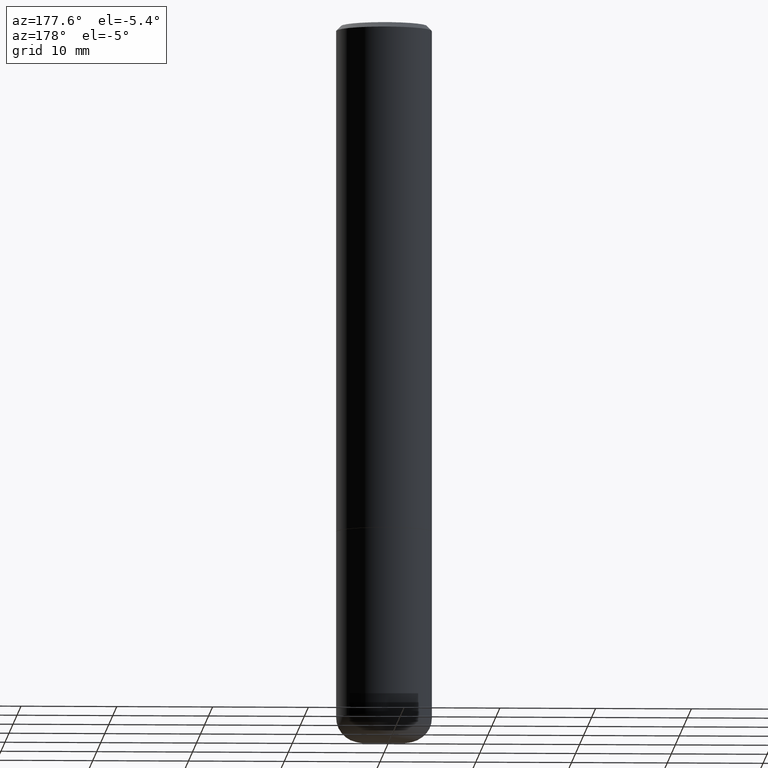
[diagram: clean part render]
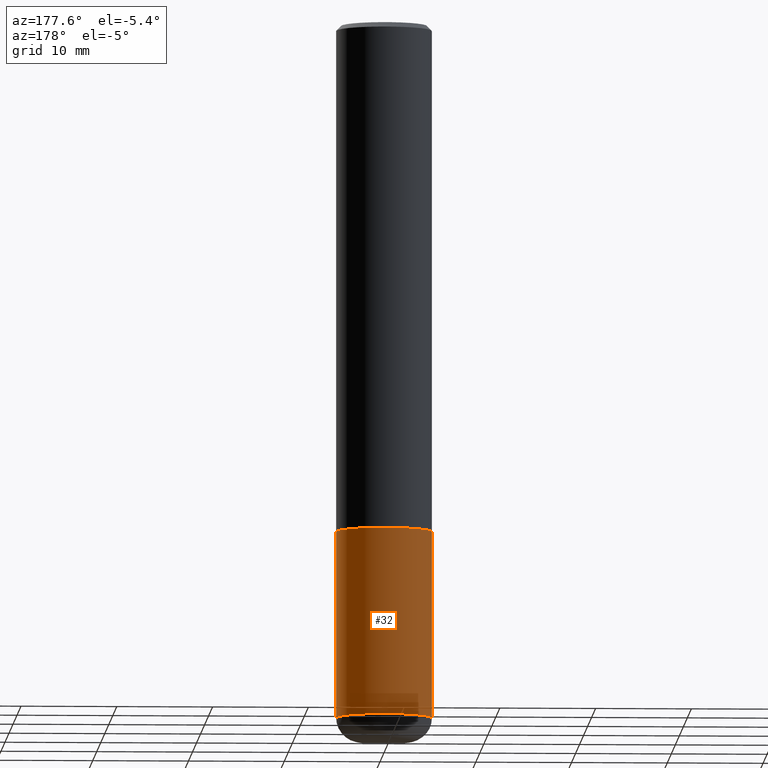
[diagram: same view with one face highlighted and labeled with its STEP entity id]
A machine part, auxiliary view. The second image highlights one B-rep face of the part: STEP entity #32.
In plain terms, the highlighted cylindrical surface (partial cylindrical patch) has radius 5 mm, axis along (-0, 0, 1).
Its self-contained STEP definition (entity closure, byte-faithful):
#3 = VERTEX_POINT ( 'NONE', #134 ) ;
#13 = DIRECTION ( 'NONE',  ( -2.445468806185136877E-29, 3.491481338843145188E-15, 1.000000000000000000 ) ) ;
#16 = LINE ( 'NONE', #237, #17 ) ;
#17 = VECTOR ( 'NONE', #179, 39.37007874015748143 ) ;
#19 = DIRECTION ( 'NONE',  ( -2.445468806185136597E-29, 3.491481338843145583E-15, 1.000000000000000000 ) ) ;
#32 = ADVANCED_FACE ( 'NONE', ( #376 ), #253, .T. ) ;
#62 = EDGE_CURVE ( 'NONE', #398, #3, #291, .T. ) ;
#76 = AXIS2_PLACEMENT_3D ( 'NONE', #185, #19, #155 ) ;
#91 = ORIENTED_EDGE ( 'NONE', *, *, #394, .T. ) ;
#106 = CARTESIAN_POINT ( 'NONE',  ( 0.1968500000000000527, -1.134068053669641403E-14, -2.854399999999999604 ) ) ;
#111 = AXIS2_PLACEMENT_3D ( 'NONE', #317, #287, #418 ) ;
#123 = VERTEX_POINT ( 'NONE', #106 ) ;
#134 = CARTESIAN_POINT ( 'NONE',  ( -0.1968500000000000250, -7.227175846335174678E-15, -2.086699999999999999 ) ) ;
#155 = DIRECTION ( 'NONE',  ( 1.000000000000000000, -6.982962677686267499E-15, 0.000000000000000000 ) ) ;
#179 = DIRECTION ( 'NONE',  ( -2.445468806185136877E-29, 3.491481338843145188E-15, 1.000000000000000000 ) ) ;
#181 = ORIENTED_EDGE ( 'NONE', *, *, #304, .T. ) ;
#185 = CARTESIAN_POINT ( 'NONE',  ( 6.980346160374851918E-29, -9.966084333593872426E-15, -2.854399999999999604 ) ) ;
#186 = EDGE_LOOP ( 'NONE', ( #181, #91, #400, #332 ) ) ;
#191 = CARTESIAN_POINT ( 'NONE',  ( 0.000000000000000000, 0.000000000000000000, 0.000000000000000000 ) ) ;
#196 = DIRECTION ( 'NONE',  ( 1.000000000000000000, -6.982962677686265922E-15, 4.876176775795935793E-29 ) ) ;
#215 = VERTEX_POINT ( 'NONE', #263 ) ;
#230 = EDGE_CURVE ( 'NONE', #123, #398, #359, .T. ) ;
#231 = CARTESIAN_POINT ( 'NONE',  ( 0.1968500000000000250, -1.374596203102541608E-15, 9.598753983154300858E-30 ) ) ;
#232 = VECTOR ( 'NONE', #13, 39.37007874015748143 ) ;
#237 = CARTESIAN_POINT ( 'NONE',  ( -0.1968500000000000250, 1.398703375343757393E-15, -9.682923725166783677E-30 ) ) ;
#253 = CYLINDRICAL_SURFACE ( 'NONE', #320, 0.1968500000000000250 ) ;
#263 = CARTESIAN_POINT ( 'NONE',  ( -0.1968500000000000527, -8.567380958250117005E-15, -2.854399999999999604 ) ) ;
#287 = DIRECTION ( 'NONE',  ( -2.445468806185136597E-29, 3.491481338843145583E-15, 1.000000000000000000 ) ) ;
#291 = CIRCLE ( 'NONE', #111, 0.1968500000000000250 ) ;
#300 = CARTESIAN_POINT ( 'NONE',  ( 0.1968500000000000250, -8.660270312866532536E-15, -2.086699999999999999 ) ) ;
#304 = EDGE_CURVE ( 'NONE', #123, #215, #335, .T. ) ;
#317 = CARTESIAN_POINT ( 'NONE',  ( 5.102959757866523939E-29, -7.285674109763990928E-15, -2.086699999999999999 ) ) ;
#320 = AXIS2_PLACEMENT_3D ( 'NONE', #191, #382, #196 ) ;
#332 = ORIENTED_EDGE ( 'NONE', *, *, #230, .F. ) ;
#335 = CIRCLE ( 'NONE', #76, 0.1968500000000000250 ) ;
#359 = LINE ( 'NONE', #231, #232 ) ;
#376 = FACE_OUTER_BOUND ( 'NONE', #186, .T. ) ;
#382 = DIRECTION ( 'NONE',  ( -2.445468806185136597E-29, 3.491481338843145583E-15, 1.000000000000000000 ) ) ;
#394 = EDGE_CURVE ( 'NONE', #215, #3, #16, .T. ) ;
#398 = VERTEX_POINT ( 'NONE', #300 ) ;
#400 = ORIENTED_EDGE ( 'NONE', *, *, #62, .F. ) ;
#418 = DIRECTION ( 'NONE',  ( 1.000000000000000000, -6.982962677686267499E-15, 0.000000000000000000 ) ) ;